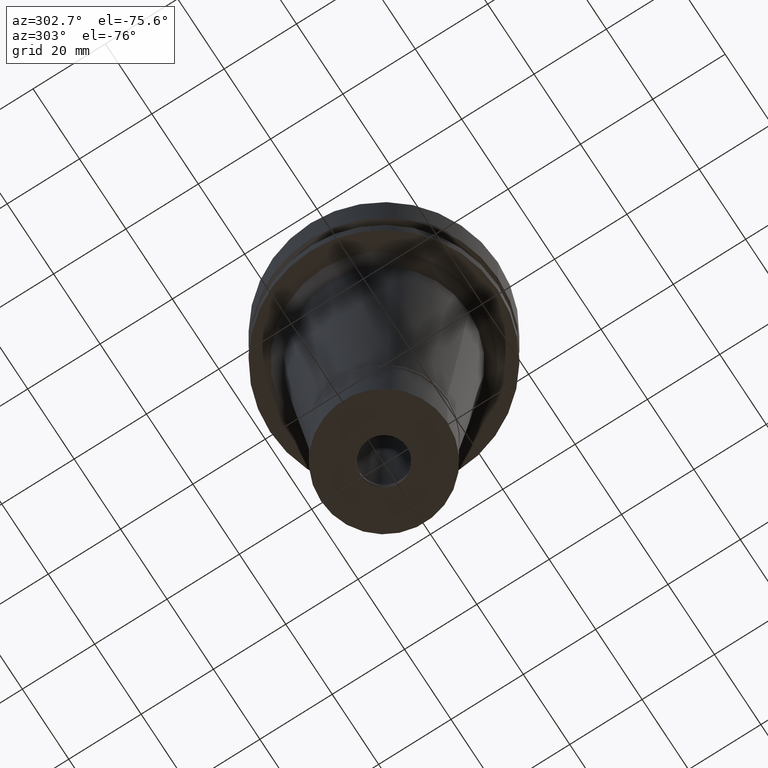
[diagram: clean part render]
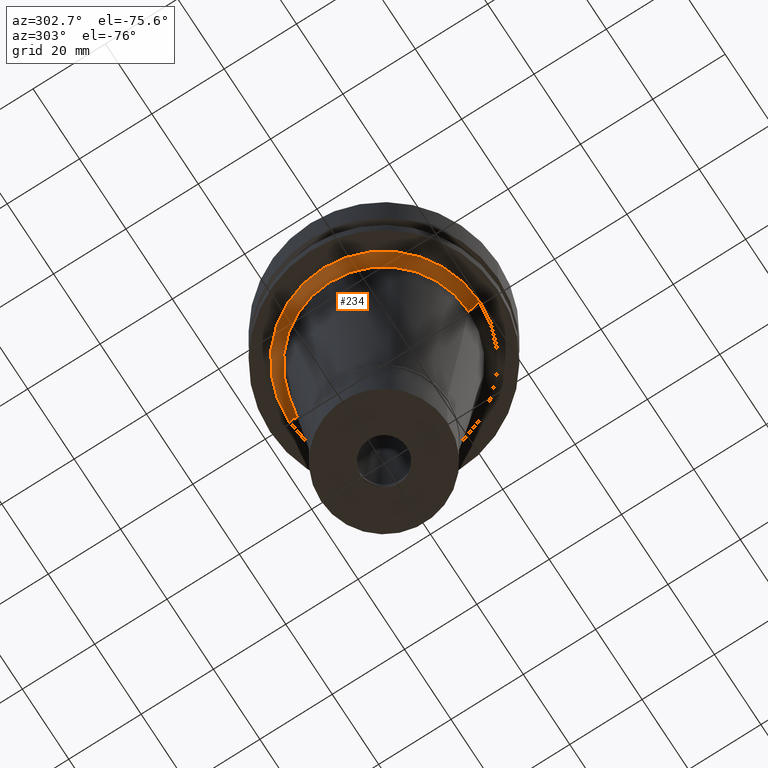
[diagram: same view with one face highlighted and labeled with its STEP entity id]
A machine part, auxiliary view. The second image highlights one B-rep face of the part: STEP entity #234.
In plain terms, the highlighted conical surface has half-angle 45 deg.
Its self-contained STEP definition (entity closure, byte-faithful):
#90 = LINE ( 'NONE', #1470, #970 ) ;
#158 = CARTESIAN_POINT ( 'NONE',  ( 0.0000000000000000000, -26.42298252071000064, -26.00000000000000000 ) ) ;
#182 = CARTESIAN_POINT ( 'NONE',  ( 0.0000000000000000000, 26.42298252071000064, -26.00000000000000000 ) ) ;
#185 = DIRECTION ( 'NONE',  ( 0.0000000000000000000, -1.000000000000000000, 0.0000000000000000000 ) ) ;
#216 = CONICAL_SURFACE ( 'NONE', #2053, 24.92298252071000064, 0.7853981633972997312 ) ;
#234 = ADVANCED_FACE ( 'NONE', ( #1648 ), #216, .T. ) ;
#283 = VERTEX_POINT ( 'NONE', #827 ) ;
#315 = DIRECTION ( 'NONE',  ( 0.0000000000000000000, 0.0000000000000000000, -1.000000000000000000 ) ) ;
#337 = CARTESIAN_POINT ( 'NONE',  ( 0.0000000000000000000, 0.0000000000000000000, -27.50000000000000000 ) ) ;
#358 = DIRECTION ( 'NONE',  ( 0.0000000000000000000, 0.7071067811869975461, -0.7071067811860975993 ) ) ;
#397 = DIRECTION ( 'NONE',  ( 0.0000000000000000000, 0.0000000000000000000, -1.000000000000000000 ) ) ;
#438 = CIRCLE ( 'NONE', #1641, 26.42298252071000064 ) ;
#467 = CARTESIAN_POINT ( 'NONE',  ( 0.0000000000000000000, 23.42298252071000064, -29.00000000000000000 ) ) ;
#537 = EDGE_CURVE ( 'NONE', #2120, #2372, #90, .T. ) ;
#545 = DIRECTION ( 'NONE',  ( 0.0000000000000000000, 0.0000000000000000000, 1.000000000000000000 ) ) ;
#677 = EDGE_CURVE ( 'NONE', #283, #2372, #2709, .T. ) ;
#681 = CARTESIAN_POINT ( 'NONE',  ( 0.0000000000000000000, -26.42298252071000064, -26.00000000000000000 ) ) ;
#827 = CARTESIAN_POINT ( 'NONE',  ( 0.0000000000000000000, -23.42298252071000064, -29.00000000000000000 ) ) ;
#970 = VECTOR ( 'NONE', #2771, 1000.000000000000000 ) ;
#1040 = ORIENTED_EDGE ( 'NONE', *, *, #2383, .F. ) ;
#1235 = LINE ( 'NONE', #158, #2607 ) ;
#1330 = ORIENTED_EDGE ( 'NONE', *, *, #1393, .T. ) ;
#1393 = EDGE_CURVE ( 'NONE', #1721, #2120, #438, .T. ) ;
#1470 = CARTESIAN_POINT ( 'NONE',  ( 0.0000000000000000000, 26.42298252071000064, -26.00000000000000000 ) ) ;
#1641 = AXIS2_PLACEMENT_3D ( 'NONE', #2041, #315, #2714 ) ;
#1648 = FACE_OUTER_BOUND ( 'NONE', #2350, .T. ) ;
#1679 = ORIENTED_EDGE ( 'NONE', *, *, #677, .F. ) ;
#1721 = VERTEX_POINT ( 'NONE', #681 ) ;
#2041 = CARTESIAN_POINT ( 'NONE',  ( 0.0000000000000000000, 0.0000000000000000000, -26.00000000000000000 ) ) ;
#2053 = AXIS2_PLACEMENT_3D ( 'NONE', #337, #545, #2519 ) ;
#2120 = VERTEX_POINT ( 'NONE', #182 ) ;
#2143 = ORIENTED_EDGE ( 'NONE', *, *, #537, .T. ) ;
#2350 = EDGE_LOOP ( 'NONE', ( #1679, #1040, #1330, #2143 ) ) ;
#2372 = VERTEX_POINT ( 'NONE', #467 ) ;
#2383 = EDGE_CURVE ( 'NONE', #1721, #283, #1235, .T. ) ;
#2519 = DIRECTION ( 'NONE',  ( 0.0000000000000000000, 1.000000000000000000, 0.0000000000000000000 ) ) ;
#2607 = VECTOR ( 'NONE', #358, 1000.000000000000000 ) ;
#2656 = AXIS2_PLACEMENT_3D ( 'NONE', #2827, #397, #185 ) ;
#2709 = CIRCLE ( 'NONE', #2656, 23.42298252071000064 ) ;
#2714 = DIRECTION ( 'NONE',  ( 0.0000000000000000000, -1.000000000000000000, 0.0000000000000000000 ) ) ;
#2771 = DIRECTION ( 'NONE',  ( 0.0000000000000000000, -0.7071067811869975461, -0.7071067811860975993 ) ) ;
#2827 = CARTESIAN_POINT ( 'NONE',  ( 0.0000000000000000000, 0.0000000000000000000, -29.00000000000000000 ) ) ;